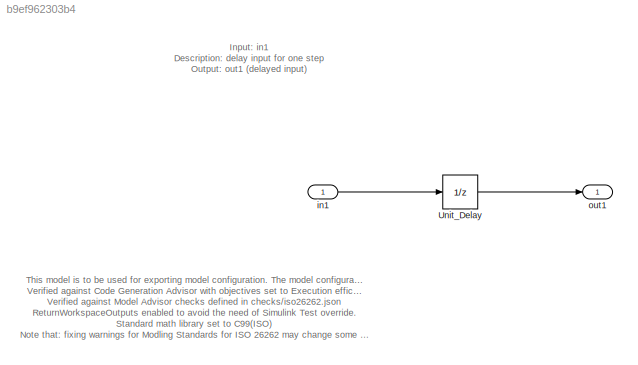
MODEL slx_b9ef962303b4
KIND model
CONFIG AbsTol = auto
CONFIG EnableMultiTasking = on
CONFIG FixedStep = auto
CONFIG MaxStep = auto
CONFIG MinStep = auto
CONFIG RelTol = 1e-3
CONFIG SampleTimeConstraint = Unconstrained
CONFIG SolverName = FixedStepDiscrete
CONFIG StartTime = 0.0
CONFIG StopTime = 10.0
BLOCK [UnitDelay] Unit_Delay
  HasFrameUpgradeWarning = on
  SampleTime = -1
BLOCK [Inport] in1
  OutDataTypeStr = single
  OutMax = 3.40282E+38
  OutMin = -3.40282E+38
  PortDimensions = 1
  SampleTime = 1e-6
  SamplingMode = Sample based
  SignalType = real
  VarSizeSig = No
BLOCK [Outport] out1
  VectorParamsAs1DForOutWhenUnconnected = off
ANNOTATION (root): This model is to be used for exporting model configuration. The model configuration has been verified against Modeling Standards for ISO 26262 and Embedded Coder Compatibilities. The following procedure has been taken to achieve the final configuration: Verified against Code Generation Advisor with objectives set to Execution efficiency, ROM efficiency, RAM efficiency, MISRA C:2012 guidelines. Ver...<+392ch>
ANNOTATION (root): Input: in1 Description: delay input for one step Output: out1 (delayed input)
LINE Unit_Delay:1 -> out1:1
LINE in1:1 -> Unit_Delay:1
